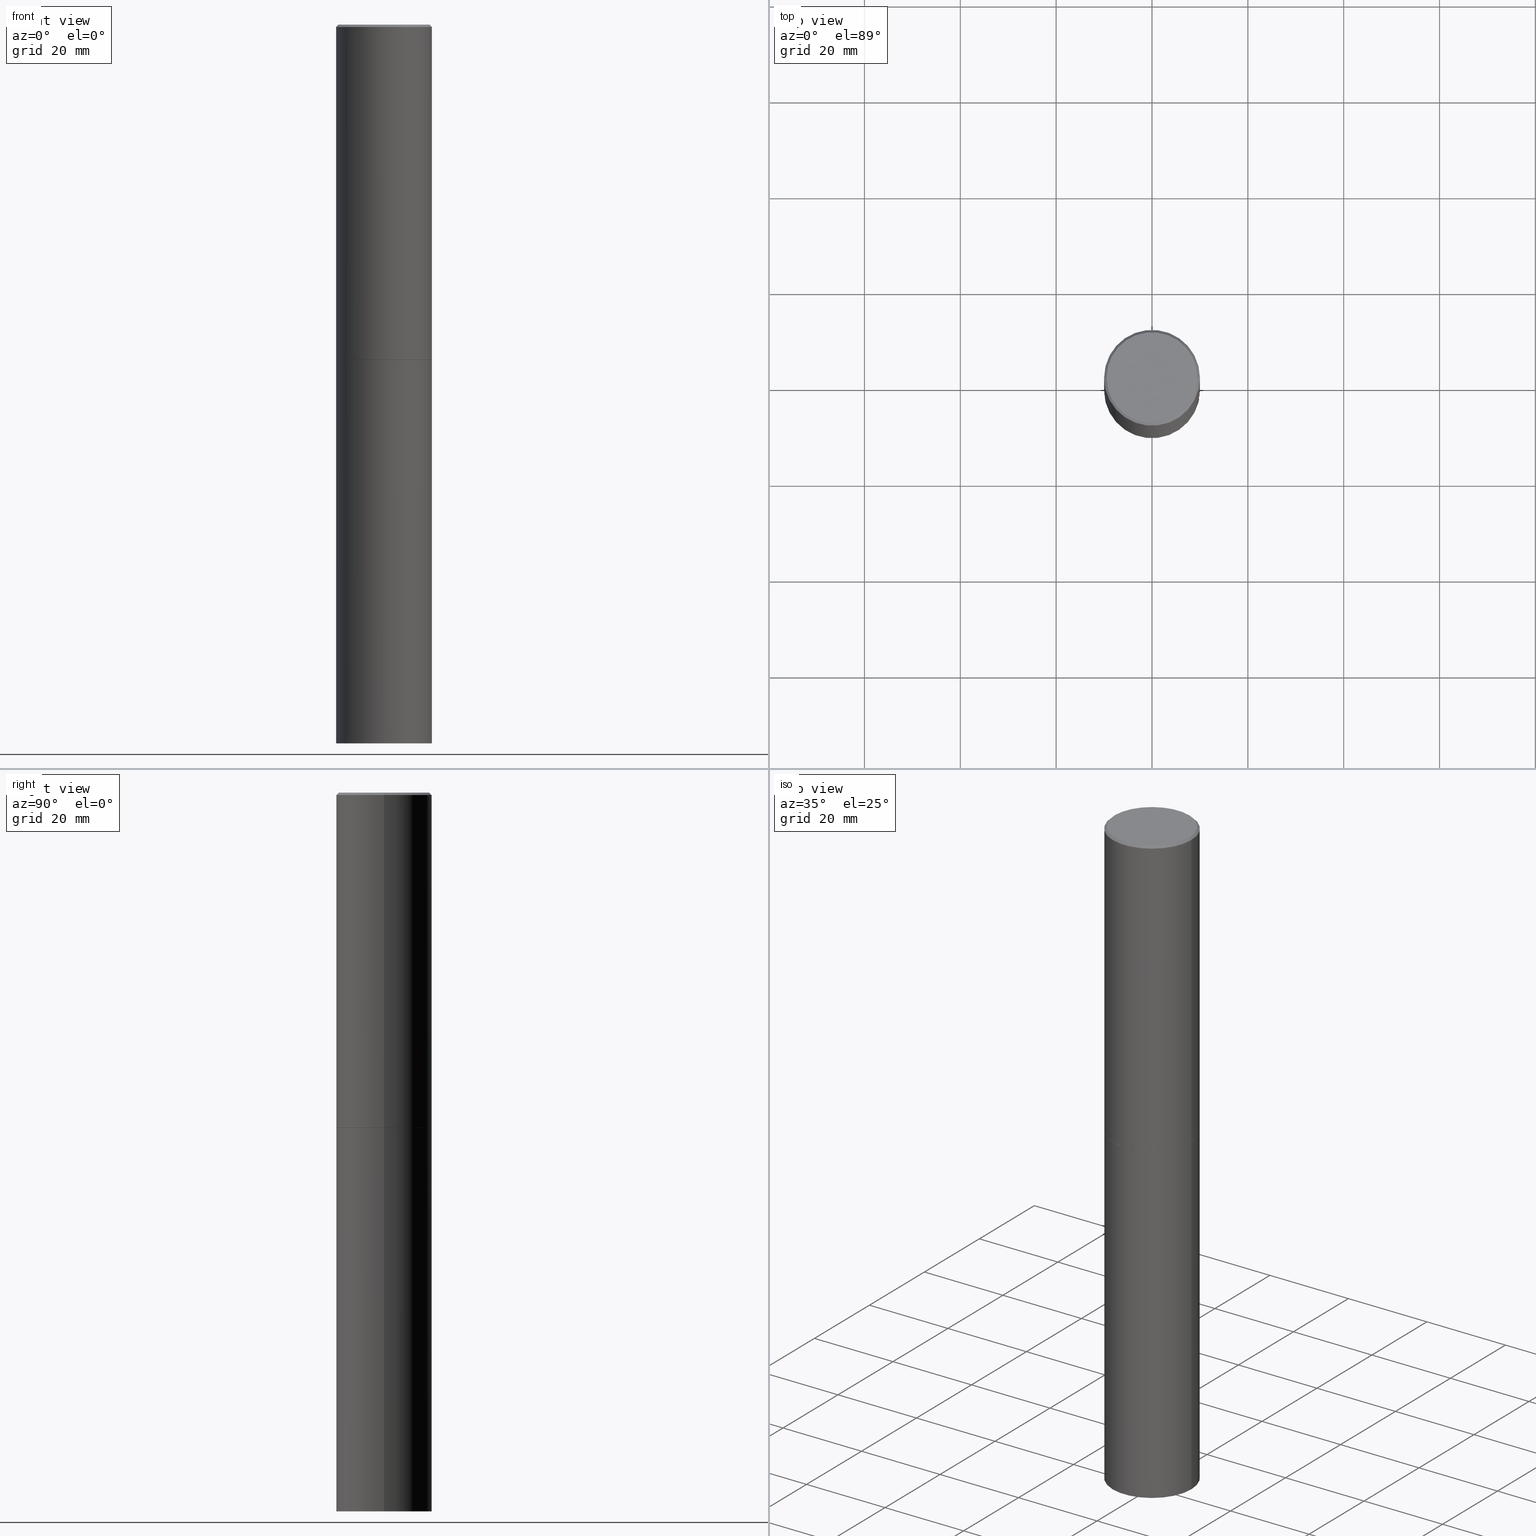
[diagram: canonical four-view strip — front | top / right | iso, engineering-drawing reading convention]
A machine part, canonical four-view strip (front | top / right | iso — engineering-drawing reading convention). The complete STEP part file that produces these views, byte-faithful:
ISO-10303-21;
HEADER;
FILE_DESCRIPTION (( 'STEP AP203' ),
    '1' );
FILE_NAME ('44901.STEP',
    '2024-02-28T08:16:23',
    ( '' ),
    ( '' ),
    'SwSTEP 2.0',
    'SolidWorks 2023',
    '' );
FILE_SCHEMA (( 'CONFIG_CONTROL_DESIGN' ));
ENDSEC;

DATA;
#1 = ADVANCED_FACE ( 'NONE', ( #96 ), #142, .T. ) ;
#2 = SHAPE_DEFINITION_REPRESENTATION ( #42, #302 ) ;
#3 = CARTESIAN_POINT ( 'NONE',  ( 6.739467482965617111E-29, -9.622173421717822812E-15, -2.755899999999999572 ) ) ;
#4 = CALENDAR_DATE ( 2024, 28, 2 ) ;
#5 = ORIENTED_EDGE ( 'NONE', *, *, #15, .T. ) ;
#6 = APPROVAL_STATUS ( 'not_yet_approved' ) ;
#7 = CARTESIAN_POINT ( 'NONE',  ( 2.749192406205150270E-15, 0.3936999999999903910, -2.755900000000000905 ) ) ;
#8 = ORIENTED_EDGE ( 'NONE', *, *, #154, .F. ) ;
#9 = DIRECTION ( 'NONE',  ( 1.000000000000000000, -6.982962677686266711E-15, 4.876176775795935793E-29 ) ) ;
#10 = CARTESIAN_POINT ( 'NONE',  ( 4.890937612370294178E-31, -6.982962677686321191E-17, -0.02000000000000008715 ) ) ;
#11 = ADVANCED_FACE ( 'NONE', ( #159 ), #260, .T. ) ;
#12 = DIRECTION ( 'NONE',  ( -0.7071067811865469066, 2.468850131082250355E-15, -0.7071067811865481278 ) ) ;
#13 = LOCAL_TIME ( 3, 16, 23.00000000000000000, #18 ) ;
#14 = ORIENTED_EDGE ( 'NONE', *, *, #130, .T. ) ;
#15 = EDGE_CURVE ( 'NONE', #87, #276, #337, .T. ) ;
#16 = CC_DESIGN_SECURITY_CLASSIFICATION ( #102, ( #181 ) ) ;
#17 = APPROVAL_PERSON_ORGANIZATION ( #272, #219, #32 ) ;
#18 = COORDINATED_UNIVERSAL_TIME_OFFSET ( 5, 0, .BEHIND. ) ;
#19 = CIRCLE ( 'NONE', #231, 0.3937000000000000499 ) ;
#20 =( NAMED_UNIT ( * ) SI_UNIT ( $, .STERADIAN. ) SOLID_ANGLE_UNIT ( ) );
#21 = VERTEX_POINT ( 'NONE', #38 ) ;
#22 = DIRECTION ( 'NONE',  ( -2.445468806185136597E-29, 3.491481338843145583E-15, 1.000000000000000000 ) ) ;
#23 = SECURITY_CLASSIFICATION_LEVEL ( 'unclassified' ) ;
#24 = DIRECTION ( 'NONE',  ( -2.445468806185136597E-29, 3.491481338843145583E-15, 1.000000000000000000 ) ) ;
#25 = EDGE_CURVE ( 'NONE', #346, #21, #19, .T. ) ;
#26 = AXIS2_PLACEMENT_3D ( 'NONE', #305, #212, #255 ) ;
#27 = CARTESIAN_POINT ( 'NONE',  ( 0.3937000000000000499, -1.237136582792290603E-14, -2.755899999999999572 ) ) ;
#28 = ORIENTED_EDGE ( 'NONE', *, *, #171, .T. ) ;
#29 = EDGE_LOOP ( 'NONE', ( #240, #345 ) ) ;
#30 = ORIENTED_EDGE ( 'NONE', *, *, #259, .F. ) ;
#31 = ORIENTED_EDGE ( 'NONE', *, *, #317, .F. ) ;
#32 = APPROVAL_ROLE ( '' ) ;
#33 = VERTEX_POINT ( 'NONE', #238 ) ;
#34 = DIMENSIONAL_EXPONENTS ( 1.000000000000000000, 0.000000000000000000, 0.000000000000000000, 0.000000000000000000, 0.000000000000000000, 0.000000000000000000, 0.000000000000000000 ) ;
#35 = CARTESIAN_POINT ( 'NONE',  ( 0.3736999999999996436, -2.667287895133365992E-15, 8.537024980219274507E-18 ) ) ;
#36 = LINE ( 'NONE', #68, #76 ) ;
#37 = CARTESIAN_POINT ( 'NONE',  ( 0.000000000000000000, 0.000000000000000000, 0.000000000000000000 ) ) ;
#38 = CARTESIAN_POINT ( 'NONE',  ( 0.3937000000000000499, -1.236787434658406460E-14, -2.754899999999999682 ) ) ;
#39 = CC_DESIGN_PERSON_AND_ORGANIZATION_ASSIGNMENT ( #67, #70, ( #273 ) ) ;
#40 =( CONVERSION_BASED_UNIT ( 'INCH', #110 ) LENGTH_UNIT ( ) NAMED_UNIT ( #34 ) );
#41 = ORIENTED_EDGE ( 'NONE', *, *, #317, .T. ) ;
#42 = PRODUCT_DEFINITION_SHAPE ( 'NONE', 'NONE',  #273 ) ;
#43 = CIRCLE ( 'NONE', #169, 0.3937000000000000499 ) ;
#44 = DIRECTION ( 'NONE',  ( 2.445468806185136597E-29, -3.491481338843145583E-15, -1.000000000000000000 ) ) ;
#45 = APPROVAL ( #325, 'UNSPECIFIED' ) ;
#46 = DESIGN_CONTEXT ( 'detailed design', #226, 'design' ) ;
#47 = MANIFOLD_SOLID_BREP ( 'Body-Move/Copy2[2]', #294 ) ;
#48 = ORIENTED_EDGE ( 'NONE', *, *, #62, .F. ) ;
#49 = MANIFOLD_SOLID_BREP ( 'Body-Move/Copy2[1]', #165 ) ;
#50 =( GEOMETRIC_REPRESENTATION_CONTEXT ( 3 ) GLOBAL_UNCERTAINTY_ASSIGNED_CONTEXT ( ( #288 ) ) GLOBAL_UNIT_ASSIGNED_CONTEXT ( ( #40, #58, #20 ) ) REPRESENTATION_CONTEXT ( 'NONE', 'WORKASPACE' ) );
#51 = ORIENTED_EDGE ( 'NONE', *, *, #77, .T. ) ;
#52 = PERSON_AND_ORGANIZATION ( #59, #286 ) ;
#53 = DIRECTION ( 'NONE',  ( 0.7071067811865469066, -7.319954787623254468E-15, -0.7071067811865481278 ) ) ;
#54 = ORIENTED_EDGE ( 'NONE', *, *, #284, .F. ) ;
#55 = CC_DESIGN_PERSON_AND_ORGANIZATION_ASSIGNMENT ( #270, #303, ( #181 ) ) ;
#56 = VECTOR ( 'NONE', #53, 39.37007874015748143 ) ;
#57 = DIRECTION ( 'NONE',  ( 1.000000000000000000, -6.982962677686266711E-15, 0.000000000000000000 ) ) ;
#58 =( NAMED_UNIT ( * ) PLANE_ANGLE_UNIT ( ) SI_UNIT ( $, .RADIAN. ) );
#59 = PERSON ( 'UNSPECIFIED', 'UNSPECIFIED', 'UNSPECIFIED', ('UNSPECIFIED'), ('UNSPECIFIED'), ('UNSPECIFIED') ) ;
#60 = FACE_OUTER_BOUND ( 'NONE', #69, .T. ) ;
#61 = ORIENTED_EDGE ( 'NONE', *, *, #357, .F. ) ;
#62 = EDGE_CURVE ( 'NONE', #87, #346, #36, .T. ) ;
#63 = FACE_OUTER_BOUND ( 'NONE', #247, .T. ) ;
#64 = CARTESIAN_POINT ( 'NONE',  ( 6.739467482965617111E-29, -9.622173421717822812E-15, -2.755899999999999572 ) ) ;
#65 = DIRECTION ( 'NONE',  ( -1.000000000000000000, 6.982962677686266711E-15, 0.000000000000000000 ) ) ;
#66 = EDGE_CURVE ( 'NONE', #168, #98, #285, .T. ) ;
#67 = PERSON_AND_ORGANIZATION ( #59, #286 ) ;
#68 = CARTESIAN_POINT ( 'NONE',  ( -0.3926999999999999935, -6.831872098387909034E-15, -2.755899999999999572 ) ) ;
#69 = EDGE_LOOP ( 'NONE', ( #183, #190, #111, #30 ) ) ;
#70 = PERSON_AND_ORGANIZATION_ROLE ( 'creator' ) ;
#71 = AXIS2_PLACEMENT_3D ( 'NONE', #280, #24, #249 ) ;
#72 = ADVANCED_FACE ( 'NONE', ( #344 ), #105, .T. ) ;
#73 = FACE_OUTER_BOUND ( 'NONE', #320, .T. ) ;
#74 = DATE_AND_TIME ( #4, #228 ) ;
#75 = DIRECTION ( 'NONE',  ( 1.000000000000000000, -6.982962677686267499E-15, 0.000000000000000000 ) ) ;
#76 = VECTOR ( 'NONE', #185, 39.37007874015748143 ) ;
#77 = EDGE_CURVE ( 'NONE', #168, #359, #216, .T. ) ;
#78 = CARTESIAN_POINT ( 'NONE',  ( -0.3936999999999996613, 2.679362779428217552E-15, -0.02000000000000008715 ) ) ;
#79 = CONICAL_SURFACE ( 'NONE', #127, 0.3936999999999996613, 0.7853981633974473908 ) ;
#80 = ORIENTED_EDGE ( 'NONE', *, *, #296, .T. ) ;
#81 =( LENGTH_UNIT ( ) NAMED_UNIT ( * ) SI_UNIT ( $, .METRE. ) );
#82 = PRODUCT_RELATED_PRODUCT_CATEGORY ( 'detail', '', ( #343 ) ) ;
#83 = CARTESIAN_POINT ( 'NONE',  ( -0.3937000000000000499, -1.232315148344049418E-14, -2.755899999999999572 ) ) ;
#84 = AXIS2_PLACEMENT_3D ( 'NONE', #113, #108, #222 ) ;
#85 = COORDINATED_UNIVERSAL_TIME_OFFSET ( 5, 0, .BEHIND. ) ;
#86 = CARTESIAN_POINT ( 'NONE',  ( -0.3736999999999996436, 2.644447966039786297E-15, 8.537024980182450727E-18 ) ) ;
#87 = VERTEX_POINT ( 'NONE', #170 ) ;
#88 = EDGE_CURVE ( 'NONE', #322, #33, #217, .T. ) ;
#89 = DIRECTION ( 'NONE',  ( -2.445468806185136877E-29, 3.491481338843145188E-15, 1.000000000000000000 ) ) ;
#90 = ORIENTED_EDGE ( 'NONE', *, *, #351, .F. ) ;
#91 = APPROVAL_STATUS ( 'not_yet_approved' ) ;
#92 = DIRECTION ( 'NONE',  ( 1.000000000000000000, -6.982962677686265922E-15, 4.876176775795935793E-29 ) ) ;
#93 = AXIS2_PLACEMENT_3D ( 'NONE', #126, #129, #236 ) ;
#94 = CARTESIAN_POINT ( 'NONE',  ( 0.3926999999999999935, -1.236438286524522001E-14, -2.755899999999999572 ) ) ;
#95 = EDGE_CURVE ( 'NONE', #322, #160, #257, .T. ) ;
#96 = FACE_OUTER_BOUND ( 'NONE', #101, .T. ) ;
#97 = DIRECTION ( 'NONE',  ( -2.445468806185136597E-29, 3.491481338843145583E-15, 1.000000000000000000 ) ) ;
#98 = VERTEX_POINT ( 'NONE', #83 ) ;
#99 = EDGE_CURVE ( 'NONE', #276, #87, #315, .T. ) ;
#100 = CARTESIAN_POINT ( 'NONE',  ( 4.890937612370294178E-31, -6.982962677686321191E-17, -0.02000000000000008715 ) ) ;
#101 = EDGE_LOOP ( 'NONE', ( #48, #5, #292, #256 ) ) ;
#102 = SECURITY_CLASSIFICATION ( '', '', #23 ) ;
#103 = DIRECTION ( 'NONE',  ( -2.445468806185136597E-29, 3.491481338843145583E-15, 1.000000000000000000 ) ) ;
#104 = ORIENTED_EDGE ( 'NONE', *, *, #296, .F. ) ;
#105 = CONICAL_SURFACE ( 'NONE', #156, 0.3936999999999996613, 0.7853981633974473908 ) ;
#106 = VERTEX_POINT ( 'NONE', #27 ) ;
#107 = ORIENTED_EDGE ( 'NONE', *, *, #351, .T. ) ;
#108 = DIRECTION ( 'NONE',  ( -2.445468806185136597E-29, 3.491481338843145583E-15, 1.000000000000000000 ) ) ;
#109 = AXIS2_PLACEMENT_3D ( 'NONE', #37, #339, #9 ) ;
#110 = LENGTH_MEASURE_WITH_UNIT ( LENGTH_MEASURE( 0.02539999999999999897 ), #81 );
#111 = ORIENTED_EDGE ( 'NONE', *, *, #171, .F. ) ;
#112 = APPROVAL ( #6, 'UNSPECIFIED' ) ;
#113 = CARTESIAN_POINT ( 'NONE',  ( 1.444171603492632270E-28, -2.061894304653819197E-14, -5.905499999999999972 ) ) ;
#114 = DIRECTION ( 'NONE',  ( -2.445468806185136597E-29, 3.491481338843145583E-15, 1.000000000000000000 ) ) ;
#115 = FACE_OUTER_BOUND ( 'NONE', #29, .T. ) ;
#116 = CARTESIAN_POINT ( 'NONE',  ( 0.3936999999999998279, -2.749192406205082033E-15, 1.919750796630859051E-29 ) ) ;
#117 = ADVANCED_FACE ( 'NONE', ( #115 ), #118, .F. ) ;
#118 = PLANE ( 'NONE',  #366 ) ;
#119 = DATE_TIME_ROLE ( 'classification_date' ) ;
#120 = CARTESIAN_POINT ( 'NONE',  ( 0.3937000000000000499, -2.749192406205083217E-15, 1.919750796630860172E-29 ) ) ;
#121 = LOCAL_TIME ( 3, 16, 23.00000000000000000, #338 ) ;
#122 = DIRECTION ( 'NONE',  ( 0.000000000000000000, 0.000000000000000000, 1.000000000000000000 ) ) ;
#123 = DIRECTION ( 'NONE',  ( -1.000000000000000000, 6.982962677686265922E-15, -4.876176775795935793E-29 ) ) ;
#124 = AXIS2_PLACEMENT_3D ( 'NONE', #319, #137, #243 ) ;
#125 = DIRECTION ( 'NONE',  ( 2.445468806185136597E-29, -3.491481338843145583E-15, -1.000000000000000000 ) ) ;
#126 = CARTESIAN_POINT ( 'NONE',  ( 0.000000000000000000, 0.000000000000000000, 0.000000000000000000 ) ) ;
#127 = AXIS2_PLACEMENT_3D ( 'NONE', #100, #125, #65 ) ;
#128 = CARTESIAN_POINT ( 'NONE',  ( 0.3926999999999999935, -1.236438286524522001E-14, -2.755899999999999572 ) ) ;
#129 = DIRECTION ( 'NONE',  ( -2.445468806185136597E-29, 3.491481338843145583E-15, 1.000000000000000000 ) ) ;
#130 = EDGE_CURVE ( 'NONE', #21, #33, #196, .T. ) ;
#131 = EDGE_LOOP ( 'NONE', ( #195, #104, #107, #192 ) ) ;
#132 = LINE ( 'NONE', #166, #220 ) ;
#133 = DIRECTION ( 'NONE',  ( -2.445468806185136877E-29, 3.491481338843145188E-15, 1.000000000000000000 ) ) ;
#134 = CC_DESIGN_APPROVAL ( #112, ( #273 ) ) ;
#135 = EDGE_CURVE ( 'NONE', #33, #283, #312, .T. ) ;
#136 = CARTESIAN_POINT ( 'NONE',  ( 0.3936999999999996613, -2.770807688499512973E-15, -0.02000000000000008715 ) ) ;
#137 = DIRECTION ( 'NONE',  ( -2.445468806185136597E-29, 3.491481338843145583E-15, 1.000000000000000000 ) ) ;
#138 = APPROVAL_PERSON_ORGANIZATION ( #279, #45, #330 ) ;
#139 = EDGE_LOOP ( 'NONE', ( #349, #318, #261, #90 ) ) ;
#140 = EDGE_CURVE ( 'NONE', #283, #33, #262, .T. ) ;
#141 = LINE ( 'NONE', #78, #241 ) ;
#142 = CONICAL_SURFACE ( 'NONE', #202, 0.3926999999999999935, 0.7853981633975507526 ) ;
#143 = CALENDAR_DATE ( 2024, 28, 2 ) ;
#144 = ADVANCED_FACE ( 'NONE', ( #358 ), #298, .F. ) ;
#145 = CARTESIAN_POINT ( 'NONE',  ( -0.3937000000000000499, -1.232315148344049418E-14, -5.905499999999999972 ) ) ;
#146 = AXIS2_PLACEMENT_3D ( 'NONE', #7, #161, #350 ) ;
#147 = CARTESIAN_POINT ( 'NONE',  ( 0.000000000000000000, 0.000000000000000000, 0.000000000000000000 ) ) ;
#148 = ORIENTED_EDGE ( 'NONE', *, *, #206, .F. ) ;
#149 = DATE_AND_TIME ( #199, #186 ) ;
#150 = DIRECTION ( 'NONE',  ( -2.445468806185136597E-29, 3.491481338843145583E-15, 1.000000000000000000 ) ) ;
#151 = CARTESIAN_POINT ( 'NONE',  ( 0.000000000000000000, 0.000000000000000000, 0.000000000000000000 ) ) ;
#152 = CARTESIAN_POINT ( 'NONE',  ( 6.739467482965617111E-29, -9.622173421717822812E-15, -2.755899999999999572 ) ) ;
#153 = AXIS2_PLACEMENT_3D ( 'NONE', #309, #307, #184 ) ;
#154 = EDGE_CURVE ( 'NONE', #359, #106, #328, .T. ) ;
#155 = ORIENTED_EDGE ( 'NONE', *, *, #130, .F. ) ;
#156 = AXIS2_PLACEMENT_3D ( 'NONE', #10, #44, #316 ) ;
#157 = PERSON_AND_ORGANIZATION ( #59, #286 ) ;
#158 = APPLICATION_CONTEXT ( 'configuration controlled 3d designs of mechanical parts and assemblies' ) ;
#159 = FACE_OUTER_BOUND ( 'NONE', #242, .T. ) ;
#160 = VERTEX_POINT ( 'NONE', #86 ) ;
#161 = DIRECTION ( 'NONE',  ( 2.438088387897960049E-29, -3.491481338843145188E-15, -1.000000000000000000 ) ) ;
#162 = VECTOR ( 'NONE', #205, 39.37007874015748143 ) ;
#163 = LINE ( 'NONE', #94, #162 ) ;
#164 = DIRECTION ( 'NONE',  ( -2.445468806185136597E-29, 3.491481338843145583E-15, 1.000000000000000000 ) ) ;
#165 = CLOSED_SHELL ( 'NONE', ( #200, #239, #336, #11 ) ) ;
#166 = CARTESIAN_POINT ( 'NONE',  ( -0.3936999999999998279, 2.797406750687513209E-15, -1.936584745033355614E-29 ) ) ;
#167 = DIRECTION ( 'NONE',  ( 1.000000000000000000, -6.982962677686265133E-15, 0.000000000000000000 ) ) ;
#168 = VERTEX_POINT ( 'NONE', #145 ) ;
#169 = AXIS2_PLACEMENT_3D ( 'NONE', #227, #22, #201 ) ;
#170 = CARTESIAN_POINT ( 'NONE',  ( -0.3926999999999999935, -6.826573644039688210E-15, -2.755899999999999572 ) ) ;
#171 = EDGE_CURVE ( 'NONE', #21, #346, #43, .T. ) ;
#172 = VECTOR ( 'NONE', #334, 39.37007874015748143 ) ;
#173 = CARTESIAN_POINT ( 'NONE',  ( 6.739467482965617111E-29, -9.622173421717822812E-15, -2.755899999999999572 ) ) ;
#174 = AXIS2_PLACEMENT_3D ( 'NONE', #173, #180, #252 ) ;
#175 = EDGE_LOOP ( 'NONE', ( #289, #176 ) ) ;
#176 = ORIENTED_EDGE ( 'NONE', *, *, #284, .T. ) ;
#177 = DIRECTION ( 'NONE',  ( 1.000000000000000000, -6.982962677686265133E-15, 0.000000000000000000 ) ) ;
#178 = DIRECTION ( 'NONE',  ( 1.000000000000000000, -6.982962677686267499E-15, 0.000000000000000000 ) ) ;
#179 = CC_DESIGN_PERSON_AND_ORGANIZATION_ASSIGNMENT ( #157, #203, ( #343 ) ) ;
#180 = DIRECTION ( 'NONE',  ( -2.445468806185136597E-29, 3.491481338843145583E-15, 1.000000000000000000 ) ) ;
#181 = PRODUCT_DEFINITION_FORMATION_WITH_SPECIFIED_SOURCE ( 'ANY', '', #343, .NOT_KNOWN. ) ;
#182 = ADVANCED_FACE ( 'NONE', ( #60 ), #207, .T. ) ;
#183 = ORIENTED_EDGE ( 'NONE', *, *, #99, .T. ) ;
#184 = DIRECTION ( 'NONE',  ( 1.000000000000000000, -6.982962677686266711E-15, 4.876212485538980163E-29 ) ) ;
#185 = DIRECTION ( 'NONE',  ( -0.7071067811866199593, 7.493145998870616062E-15, 0.7071067811864750752 ) ) ;
#186 = LOCAL_TIME ( 3, 16, 23.00000000000000000, #85 ) ;
#187 = ORIENTED_EDGE ( 'NONE', *, *, #25, .T. ) ;
#188 = AXIS2_PLACEMENT_3D ( 'NONE', #313, #164, #342 ) ;
#189 = FACE_OUTER_BOUND ( 'NONE', #194, .T. ) ;
#190 = ORIENTED_EDGE ( 'NONE', *, *, #62, .T. ) ;
#191 = ORIENTED_EDGE ( 'NONE', *, *, #135, .F. ) ;
#192 = ORIENTED_EDGE ( 'NONE', *, *, #140, .T. ) ;
#193 = AXIS2_PLACEMENT_3D ( 'NONE', #64, #331, #178 ) ;
#194 = EDGE_LOOP ( 'NONE', ( #28, #41, #191, #155 ) ) ;
#195 = ORIENTED_EDGE ( 'NONE', *, *, #88, .F. ) ;
#196 = LINE ( 'NONE', #116, #355 ) ;
#197 = DIRECTION ( 'NONE',  ( -2.438088387897960049E-29, 3.491481338843145188E-15, 1.000000000000000000 ) ) ;
#198 = LOCAL_TIME ( 3, 16, 23.00000000000000000, #246 ) ;
#199 = CALENDAR_DATE ( 2024, 28, 2 ) ;
#200 = ADVANCED_FACE ( 'NONE', ( #301 ), #251, .T. ) ;
#201 = DIRECTION ( 'NONE',  ( 1.000000000000000000, -6.982962677686267499E-15, 0.000000000000000000 ) ) ;
#202 = AXIS2_PLACEMENT_3D ( 'NONE', #3, #103, #167 ) ;
#203 = PERSON_AND_ORGANIZATION_ROLE ( 'design_owner' ) ;
#204 = CARTESIAN_POINT ( 'NONE',  ( 2.609533152651354648E-15, 0.3736999999999996436, -1.300498063835581828E-15 ) ) ;
#205 = DIRECTION ( 'NONE',  ( 0.7071067811866199593, -2.468850131083015945E-15, 0.7071067811864750752 ) ) ;
#206 = EDGE_CURVE ( 'NONE', #106, #98, #244, .T. ) ;
#207 = CONICAL_SURFACE ( 'NONE', #250, 0.3926999999999999935, 0.7853981633975507526 ) ;
#208 = APPROVAL_DATE_TIME ( #310, #112 ) ;
#209 = CARTESIAN_POINT ( 'NONE',  ( 6.739467482965617111E-29, -9.622173421717822812E-15, -2.755899999999999572 ) ) ;
#210 = DIRECTION ( 'NONE',  ( 1.000000000000000000, -6.982962677686267499E-15, 0.000000000000000000 ) ) ;
#211 = CALENDAR_DATE ( 2024, 28, 2 ) ;
#212 = DIRECTION ( 'NONE',  ( -2.445468806185136597E-29, 3.491481338843145583E-15, 1.000000000000000000 ) ) ;
#213 = CC_DESIGN_PERSON_AND_ORGANIZATION_ASSIGNMENT ( #360, #277, ( #181 ) ) ;
#214 = CARTESIAN_POINT ( 'NONE',  ( 6.737022014159431508E-29, -9.618681940378979805E-15, -2.754899999999999682 ) ) ;
#215 = VECTOR ( 'NONE', #133, 39.37007874015748143 ) ;
#216 = CIRCLE ( 'NONE', #268, 0.3937000000000000499 ) ;
#217 = LINE ( 'NONE', #136, #56 ) ;
#218 = EDGE_LOOP ( 'NONE', ( #221, #237, #148, #8 ) ) ;
#219 = APPROVAL ( #91, 'UNSPECIFIED' ) ;
#220 = VECTOR ( 'NONE', #234, 39.37007874015748143 ) ;
#221 = ORIENTED_EDGE ( 'NONE', *, *, #357, .T. ) ;
#222 = DIRECTION ( 'NONE',  ( 1.000000000000000000, -6.982962677686267499E-15, 0.000000000000000000 ) ) ;
#223 = DIRECTION ( 'NONE',  ( 1.000000000000000000, -6.982962677686267499E-15, 0.000000000000000000 ) ) ;
#224 = CC_DESIGN_APPROVAL ( #219, ( #102 ) ) ;
#225 = DIRECTION ( 'NONE',  ( -2.445468806185136597E-29, 3.491481338843145583E-15, 1.000000000000000000 ) ) ;
#226 = APPLICATION_CONTEXT ( 'configuration controlled 3d designs of mechanical parts and assemblies' ) ;
#227 = CARTESIAN_POINT ( 'NONE',  ( 6.737022014159431508E-29, -9.618681940378979805E-15, -2.754899999999999682 ) ) ;
#228 = LOCAL_TIME ( 3, 16, 23.00000000000000000, #348 ) ;
#229 = DIRECTION ( 'NONE',  ( 1.000000000000000000, 0.000000000000000000, 0.000000000000000000 ) ) ;
#230 = CARTESIAN_POINT ( 'NONE',  ( 6.739467482965617111E-29, -9.622173421717822812E-15, -2.755899999999999572 ) ) ;
#231 = AXIS2_PLACEMENT_3D ( 'NONE', #214, #97, #210 ) ;
#232 = CYLINDRICAL_SURFACE ( 'NONE', #26, 0.3936999999999998279 ) ;
#233 = PERSON_AND_ORGANIZATION ( #59, #286 ) ;
#234 = DIRECTION ( 'NONE',  ( -2.445468806185136877E-29, 3.491481338843145188E-15, 1.000000000000000000 ) ) ;
#235 = AXIS2_PLACEMENT_3D ( 'NONE', #147, #304, #253 ) ;
#236 = DIRECTION ( 'NONE',  ( 1.000000000000000000, -6.982962677686265922E-15, 4.876176775795935793E-29 ) ) ;
#237 = ORIENTED_EDGE ( 'NONE', *, *, #66, .T. ) ;
#238 = CARTESIAN_POINT ( 'NONE',  ( 0.3936999999999996613, -2.770807688499512973E-15, -0.02000000000000008715 ) ) ;
#239 = ADVANCED_FACE ( 'NONE', ( #63 ), #278, .T. ) ;
#240 = ORIENTED_EDGE ( 'NONE', *, *, #99, .F. ) ;
#241 = VECTOR ( 'NONE', #12, 39.37007874015748143 ) ;
#242 = EDGE_LOOP ( 'NONE', ( #299, #51, #265, #54 ) ) ;
#243 = DIRECTION ( 'NONE',  ( 1.000000000000000000, -6.982962677686266711E-15, 4.876212485538980163E-29 ) ) ;
#244 = CIRCLE ( 'NONE', #193, 0.3937000000000000499 ) ;
#245 = EDGE_LOOP ( 'NONE', ( #80, #269 ) ) ;
#246 = COORDINATED_UNIVERSAL_TIME_OFFSET ( 5, 0, .BEHIND. ) ;
#247 = EDGE_LOOP ( 'NONE', ( #61, #324 ) ) ;
#248 = APPROVAL_DATE_TIME ( #149, #45 ) ;
#249 = DIRECTION ( 'NONE',  ( 1.000000000000000000, -6.982962677686266711E-15, 0.000000000000000000 ) ) ;
#250 = AXIS2_PLACEMENT_3D ( 'NONE', #152, #150, #177 ) ;
#251 = CYLINDRICAL_SURFACE ( 'NONE', #235, 0.3937000000000000499 ) ;
#252 = DIRECTION ( 'NONE',  ( 1.000000000000000000, -6.982962677686265133E-15, 0.000000000000000000 ) ) ;
#253 = DIRECTION ( 'NONE',  ( 1.000000000000000000, -6.982962677686265922E-15, 4.876176775795935793E-29 ) ) ;
#254 = CARTESIAN_POINT ( 'NONE',  ( 2.749192406205227578E-15, 0.3936999999999793998, -5.905500000000000860 ) ) ;
#255 = DIRECTION ( 'NONE',  ( 1.000000000000000000, -6.982962677686266711E-15, 4.876176775795935793E-29 ) ) ;
#256 = ORIENTED_EDGE ( 'NONE', *, *, #25, .F. ) ;
#257 = CIRCLE ( 'NONE', #124, 0.3736999999999996436 ) ;
#258 = APPROVAL_ROLE ( '' ) ;
#259 = EDGE_CURVE ( 'NONE', #276, #21, #163, .T. ) ;
#260 = CYLINDRICAL_SURFACE ( 'NONE', #93, 0.3937000000000000499 ) ;
#261 = ORIENTED_EDGE ( 'NONE', *, *, #135, .T. ) ;
#262 = CIRCLE ( 'NONE', #274, 0.3936999999999996613 ) ;
#263 = CARTESIAN_POINT ( 'NONE',  ( -0.3936999999999996613, 2.679362779428217552E-15, -0.02000000000000008715 ) ) ;
#264 = CARTESIAN_POINT ( 'NONE',  ( -0.3937000000000000499, 2.797406750687514786E-15, -1.936584745033356735E-29 ) ) ;
#265 = ORIENTED_EDGE ( 'NONE', *, *, #154, .T. ) ;
#266 = APPROVAL_PERSON_ORGANIZATION ( #233, #112, #258 ) ;
#267 = CC_DESIGN_DATE_AND_TIME_ASSIGNMENT ( #329, #297, ( #273 ) ) ;
#268 = AXIS2_PLACEMENT_3D ( 'NONE', #290, #114, #223 ) ;
#269 = ORIENTED_EDGE ( 'NONE', *, *, #95, .T. ) ;
#270 = PERSON_AND_ORGANIZATION ( #59, #286 ) ;
#271 = DIRECTION ( 'NONE',  ( 2.438088387897960049E-29, -3.491481338843145188E-15, -1.000000000000000000 ) ) ;
#272 = PERSON_AND_ORGANIZATION ( #59, #286 ) ;
#273 = PRODUCT_DEFINITION ( 'UNKNOWN', '', #181, #46 ) ;
#274 = AXIS2_PLACEMENT_3D ( 'NONE', #275, #225, #57 ) ;
#275 = CARTESIAN_POINT ( 'NONE',  ( 4.890937612370294178E-31, -6.982962677686321191E-17, -0.02000000000000008715 ) ) ;
#276 = VERTEX_POINT ( 'NONE', #128 ) ;
#277 = PERSON_AND_ORGANIZATION_ROLE ( 'design_supplier' ) ;
#278 = PLANE ( 'NONE',  #327 ) ;
#279 = PERSON_AND_ORGANIZATION ( #59, #286 ) ;
#280 = CARTESIAN_POINT ( 'NONE',  ( 4.890937612370294178E-31, -6.982962677686321191E-17, -0.02000000000000008715 ) ) ;
#281 = AXIS2_PLACEMENT_3D ( 'NONE', #151, #122, #229 ) ;
#282 = PLANE ( 'NONE',  #146 ) ;
#283 = VERTEX_POINT ( 'NONE', #263 ) ;
#284 = EDGE_CURVE ( 'NONE', #98, #106, #362, .T. ) ;
#285 = LINE ( 'NONE', #264, #215 ) ;
#286 = ORGANIZATION ( 'UNSPECIFIED', 'UNSPECIFIED', '' ) ;
#287 = ORIENTED_EDGE ( 'NONE', *, *, #140, .F. ) ;
#288 = UNCERTAINTY_MEASURE_WITH_UNIT (LENGTH_MEASURE( 1.000000000000000082E-05 ), #40, 'distance_accuracy_value', 'NONE');
#289 = ORIENTED_EDGE ( 'NONE', *, *, #206, .T. ) ;
#290 = CARTESIAN_POINT ( 'NONE',  ( 1.444171603492632270E-28, -2.061894304653819197E-14, -5.905499999999999972 ) ) ;
#291 = APPROVAL_DATE_TIME ( #74, #219 ) ;
#292 = ORIENTED_EDGE ( 'NONE', *, *, #259, .T. ) ;
#293 = CALENDAR_DATE ( 2024, 28, 2 ) ;
#294 = CLOSED_SHELL ( 'NONE', ( #182, #308, #72, #295, #323, #1, #117, #144 ) ) ;
#295 = ADVANCED_FACE ( 'NONE', ( #341 ), #79, .T. ) ;
#296 = EDGE_CURVE ( 'NONE', #160, #322, #321, .T. ) ;
#297 = DATE_TIME_ROLE ( 'creation_date' ) ;
#298 = PLANE ( 'NONE',  #306 ) ;
#299 = ORIENTED_EDGE ( 'NONE', *, *, #66, .F. ) ;
#300 = AXIS2_PLACEMENT_3D ( 'NONE', #209, #314, #75 ) ;
#301 = FACE_OUTER_BOUND ( 'NONE', #218, .T. ) ;
#302 = ADVANCED_BREP_SHAPE_REPRESENTATION ( '44901', ( #49, #47, #281 ), #50 ) ;
#303 = PERSON_AND_ORGANIZATION_ROLE ( 'creator' ) ;
#304 = DIRECTION ( 'NONE',  ( -2.445468806185136597E-29, 3.491481338843145583E-15, 1.000000000000000000 ) ) ;
#305 = CARTESIAN_POINT ( 'NONE',  ( 0.000000000000000000, 0.000000000000000000, 0.000000000000000000 ) ) ;
#306 = AXIS2_PLACEMENT_3D ( 'NONE', #204, #271, #361 ) ;
#307 = DIRECTION ( 'NONE',  ( -2.445468806185136597E-29, 3.491481338843145583E-15, 1.000000000000000000 ) ) ;
#308 = ADVANCED_FACE ( 'NONE', ( #189 ), #232, .T. ) ;
#309 = CARTESIAN_POINT ( 'NONE',  ( -2.087702828670439639E-46, 2.980686340760894400E-32, 8.537024980200822558E-18 ) ) ;
#310 = DATE_AND_TIME ( #211, #121 ) ;
#311 = CYLINDRICAL_SURFACE ( 'NONE', #109, 0.3936999999999998279 ) ;
#312 = CIRCLE ( 'NONE', #71, 0.3936999999999996613 ) ;
#313 = CARTESIAN_POINT ( 'NONE',  ( 6.739467482965617111E-29, -9.622173421717822812E-15, -2.755899999999999572 ) ) ;
#314 = DIRECTION ( 'NONE',  ( -2.445468806185136597E-29, 3.491481338843145583E-15, 1.000000000000000000 ) ) ;
#315 = CIRCLE ( 'NONE', #174, 0.3926999999999999935 ) ;
#316 = DIRECTION ( 'NONE',  ( -1.000000000000000000, 6.982962677686266711E-15, 0.000000000000000000 ) ) ;
#317 = EDGE_CURVE ( 'NONE', #346, #283, #132, .T. ) ;
#318 = ORIENTED_EDGE ( 'NONE', *, *, #88, .T. ) ;
#319 = CARTESIAN_POINT ( 'NONE',  ( -2.087702828670439639E-46, 2.980686340760894400E-32, 8.537024980200822558E-18 ) ) ;
#320 = EDGE_LOOP ( 'NONE', ( #31, #187, #14, #287 ) ) ;
#321 = CIRCLE ( 'NONE', #153, 0.3736999999999996436 ) ;
#322 = VERTEX_POINT ( 'NONE', #35 ) ;
#323 = ADVANCED_FACE ( 'NONE', ( #73 ), #311, .T. ) ;
#324 = ORIENTED_EDGE ( 'NONE', *, *, #77, .F. ) ;
#325 = APPROVAL_STATUS ( 'not_yet_approved' ) ;
#326 = CARTESIAN_POINT ( 'NONE',  ( 0.3937000000000000499, -2.336813545274327834E-14, -5.905499999999999972 ) ) ;
#327 = AXIS2_PLACEMENT_3D ( 'NONE', #254, #363, #123 ) ;
#328 = LINE ( 'NONE', #120, #172 ) ;
#329 = DATE_AND_TIME ( #293, #198 ) ;
#330 = APPROVAL_ROLE ( '' ) ;
#331 = DIRECTION ( 'NONE',  ( -2.445468806185136597E-29, 3.491481338843145583E-15, 1.000000000000000000 ) ) ;
#332 = APPLICATION_PROTOCOL_DEFINITION ( 'international standard', 'config_control_design', 1994, #158 ) ;
#333 = CC_DESIGN_APPROVAL ( #45, ( #181 ) ) ;
#334 = DIRECTION ( 'NONE',  ( -2.445468806185136877E-29, 3.491481338843145188E-15, 1.000000000000000000 ) ) ;
#335 = MECHANICAL_CONTEXT ( 'NONE', #158, 'mechanical' ) ;
#336 = ADVANCED_FACE ( 'NONE', ( #365 ), #282, .F. ) ;
#337 = CIRCLE ( 'NONE', #188, 0.3926999999999999935 ) ;
#338 = COORDINATED_UNIVERSAL_TIME_OFFSET ( 5, 0, .BEHIND. ) ;
#339 = DIRECTION ( 'NONE',  ( -2.445468806185136597E-29, 3.491481338843145583E-15, 1.000000000000000000 ) ) ;
#340 = CC_DESIGN_PERSON_AND_ORGANIZATION_ASSIGNMENT ( #52, #356, ( #102 ) ) ;
#341 = FACE_OUTER_BOUND ( 'NONE', #131, .T. ) ;
#342 = DIRECTION ( 'NONE',  ( 1.000000000000000000, -6.982962677686265133E-15, 0.000000000000000000 ) ) ;
#343 = PRODUCT ( '44901', '44901', '', ( #335 ) ) ;
#344 = FACE_OUTER_BOUND ( 'NONE', #139, .T. ) ;
#345 = ORIENTED_EDGE ( 'NONE', *, *, #15, .F. ) ;
#346 = VERTEX_POINT ( 'NONE', #353 ) ;
#347 = CC_DESIGN_DATE_AND_TIME_ASSIGNMENT ( #354, #119, ( #102 ) ) ;
#348 = COORDINATED_UNIVERSAL_TIME_OFFSET ( 5, 0, .BEHIND. ) ;
#349 = ORIENTED_EDGE ( 'NONE', *, *, #95, .F. ) ;
#350 = DIRECTION ( 'NONE',  ( -1.000000000000000000, 6.982962677686265922E-15, -4.876176775795935793E-29 ) ) ;
#351 = EDGE_CURVE ( 'NONE', #160, #283, #141, .T. ) ;
#352 = CIRCLE ( 'NONE', #84, 0.3937000000000000499 ) ;
#353 = CARTESIAN_POINT ( 'NONE',  ( -0.3937000000000000499, -2.046849032890405582E-15, -2.754899999999999682 ) ) ;
#354 = DATE_AND_TIME ( #143, #13 ) ;
#355 = VECTOR ( 'NONE', #89, 39.37007874015748143 ) ;
#356 = PERSON_AND_ORGANIZATION_ROLE ( 'classification_officer' ) ;
#357 = EDGE_CURVE ( 'NONE', #359, #168, #352, .T. ) ;
#358 = FACE_OUTER_BOUND ( 'NONE', #245, .T. ) ;
#359 = VERTEX_POINT ( 'NONE', #326 ) ;
#360 = PERSON_AND_ORGANIZATION ( #59, #286 ) ;
#361 = DIRECTION ( 'NONE',  ( -1.000000000000000000, 6.982962677686265922E-15, -4.876176775795935793E-29 ) ) ;
#362 = CIRCLE ( 'NONE', #300, 0.3937000000000000499 ) ;
#363 = DIRECTION ( 'NONE',  ( 2.438088387897960049E-29, -3.491481338843145188E-15, -1.000000000000000000 ) ) ;
#364 = APPLICATION_PROTOCOL_DEFINITION ( 'international standard', 'config_control_design', 1994, #226 ) ;
#365 = FACE_OUTER_BOUND ( 'NONE', #175, .T. ) ;
#366 = AXIS2_PLACEMENT_3D ( 'NONE', #230, #197, #92 ) ;
ENDSEC;
END-ISO-10303-21;
